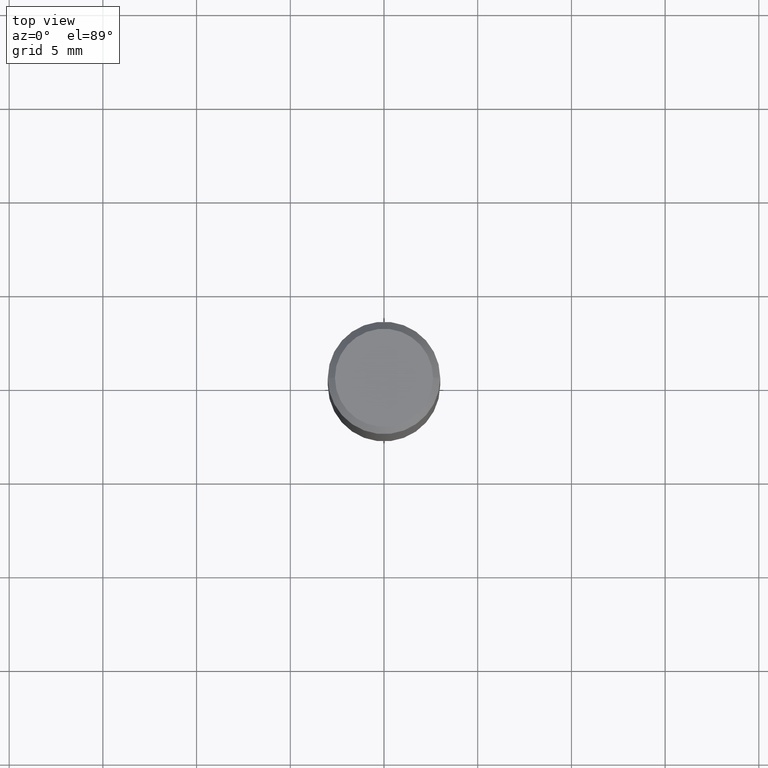
[diagram: clean part render]
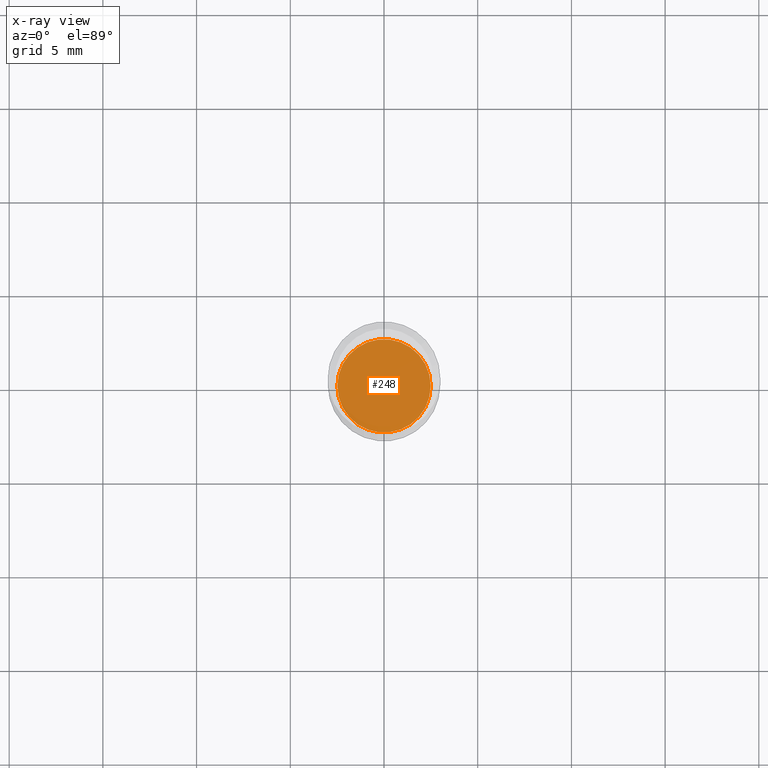
[diagram: x-ray — body ghosted, one internal face saturated and labeled with its STEP entity id]
A machine part, top view, then the same camera in x-ray: the body is ghosted and one INTERNAL B-rep face — a face not visible from any outside direction — is saturated and labeled: STEP entity #248.
In plain terms, the highlighted planar face has unit normal (-0, 0, 1).
Its self-contained STEP definition (entity closure, byte-faithful):
#21 = CARTESIAN_POINT ( 'NONE',  ( 2.416612274272152255E-29, -3.450281859044796915E-15, -0.9882000000000000783 ) ) ;
#28 = EDGE_LOOP ( 'NONE', ( #275, #239 ) ) ;
#47 = DIRECTION ( 'NONE',  ( -2.445468806185136597E-29, 3.491481338843145583E-15, 1.000000000000000000 ) ) ;
#49 = AXIS2_PLACEMENT_3D ( 'NONE', #347, #312, #237 ) ;
#100 = PLANE ( 'NONE',  #313 ) ;
#111 = EDGE_CURVE ( 'NONE', #144, #269, #292, .T. ) ;
#137 = DIRECTION ( 'NONE',  ( -2.438088387897960049E-29, 3.491481338843145188E-15, 1.000000000000000000 ) ) ;
#144 = VERTEX_POINT ( 'NONE', #434 ) ;
#171 = FACE_OUTER_BOUND ( 'NONE', #28, .T. ) ;
#195 = CARTESIAN_POINT ( 'NONE',  ( -0.09794999999999999540, -2.751656022193666924E-15, -0.9881999999999999673 ) ) ;
#230 = DIRECTION ( 'NONE',  ( 1.000000000000000000, -6.982962677686265133E-15, 0.000000000000000000 ) ) ;
#237 = DIRECTION ( 'NONE',  ( 1.000000000000000000, -6.982962677686265133E-15, 0.000000000000000000 ) ) ;
#239 = ORIENTED_EDGE ( 'NONE', *, *, #240, .F. ) ;
#240 = EDGE_CURVE ( 'NONE', #269, #144, #251, .T. ) ;
#248 = ADVANCED_FACE ( 'NONE', ( #171 ), #100, .F. ) ;
#251 = CIRCLE ( 'NONE', #49, 0.09794999999999999540 ) ;
#259 = CARTESIAN_POINT ( 'NONE',  ( 2.416612274272151975E-29, -3.450281859044796521E-15, -0.9881999999999999673 ) ) ;
#269 = VERTEX_POINT ( 'NONE', #195 ) ;
#275 = ORIENTED_EDGE ( 'NONE', *, *, #111, .F. ) ;
#292 = CIRCLE ( 'NONE', #400, 0.09794999999999999540 ) ;
#309 = DIRECTION ( 'NONE',  ( 1.000000000000000000, -6.982962677686265922E-15, 4.876176775795935793E-29 ) ) ;
#312 = DIRECTION ( 'NONE',  ( -2.445468806185136597E-29, 3.491481338843145583E-15, 1.000000000000000000 ) ) ;
#313 = AXIS2_PLACEMENT_3D ( 'NONE', #21, #137, #309 ) ;
#347 = CARTESIAN_POINT ( 'NONE',  ( 2.416612274272151975E-29, -3.450281859044796521E-15, -0.9881999999999999673 ) ) ;
#400 = AXIS2_PLACEMENT_3D ( 'NONE', #259, #47, #230 ) ;
#434 = CARTESIAN_POINT ( 'NONE',  ( 0.09794999999999999540, -4.134263053324165679E-15, -0.9881999999999999673 ) ) ;